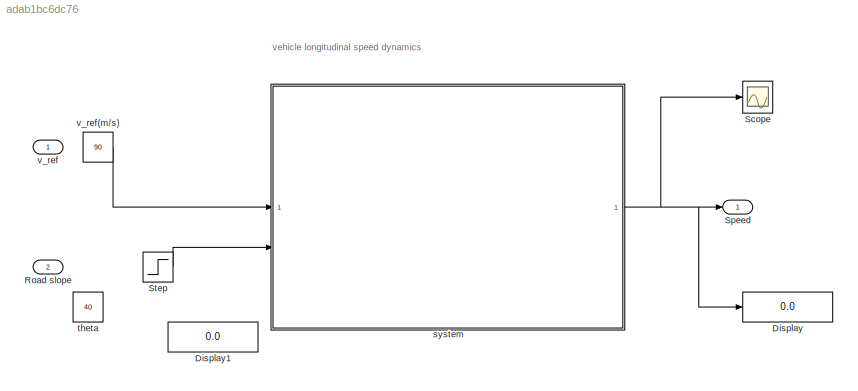
MODEL slx_adab1bc6dc76
KIND model
CONFIG AbsTol = auto
CONFIG EnableMultiTasking = off
CONFIG FixedStep = auto
CONFIG MaxStep = auto
CONFIG MinStep = auto
CONFIG RelTol = 1e-3
CONFIG SampleTimeConstraint = Unconstrained
CONFIG SolverName = ode23
CONFIG StartTime = 0.0
CONFIG StopTime = 10.0
BLOCK [Display] Display
  Decimation = 1
BLOCK [Display] Display1
  Decimation = 1
BLOCK [Inport] Road slope
  Port = 2
BLOCK [Scope] Scope
  Floating = off
  NumInputPorts = 1
  ScopeSpecificationString = Simulink.scopes.TimeScopeBlockCfg('CurrentConfiguration', extmgr.ConfigurationSet(extmgr.Configuration('Core','General UI',true),extmgr.Configuration('Core','Source UI',true),extmgr.Configuration('Sources','WiredSimulink',true),extmgr.Configuration('Visuals','Time Domain',true,'SerializedDisplays',{struct('MinYLimReal','-11.20107','MaxYLimReal','100.80966','YLabelReal','','MinYLimMag','0.00000','M...<+1454ch>
BLOCK [Outport] Speed
BLOCK [Step] Step
  After = 30
  SampleTime = 0
  Time = 20
  ZeroCross = off
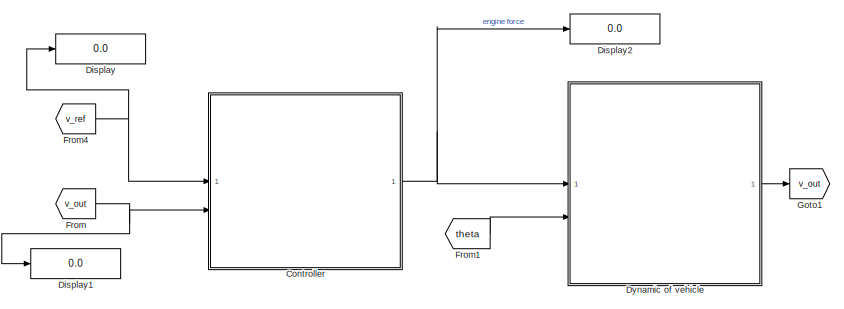
[diagram: system - part 1/2, top right region]
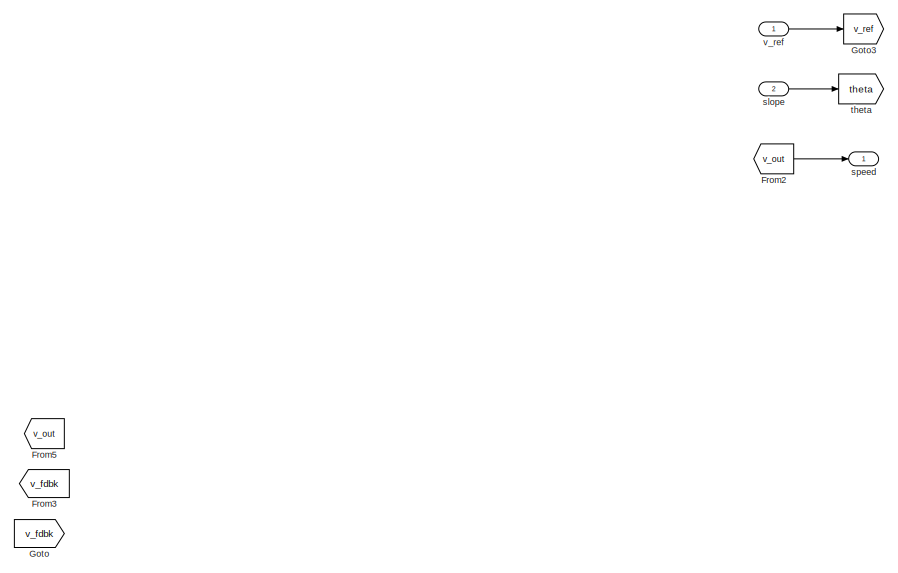
[diagram: system - part 2/2, left side, full height]
BLOCK [SubSystem] system
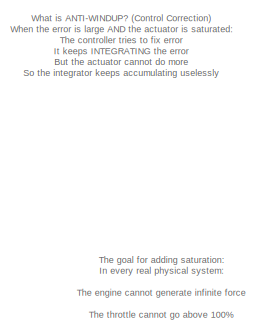
[diagram: system/Controller - part 1/13, top left region]
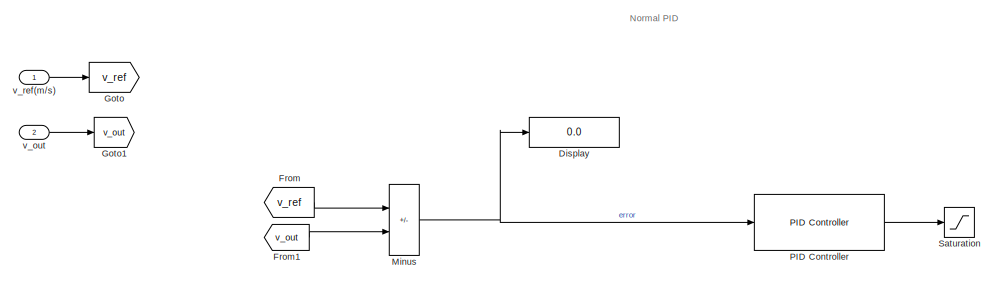
[diagram: system/Controller - part 2/13, top left region]
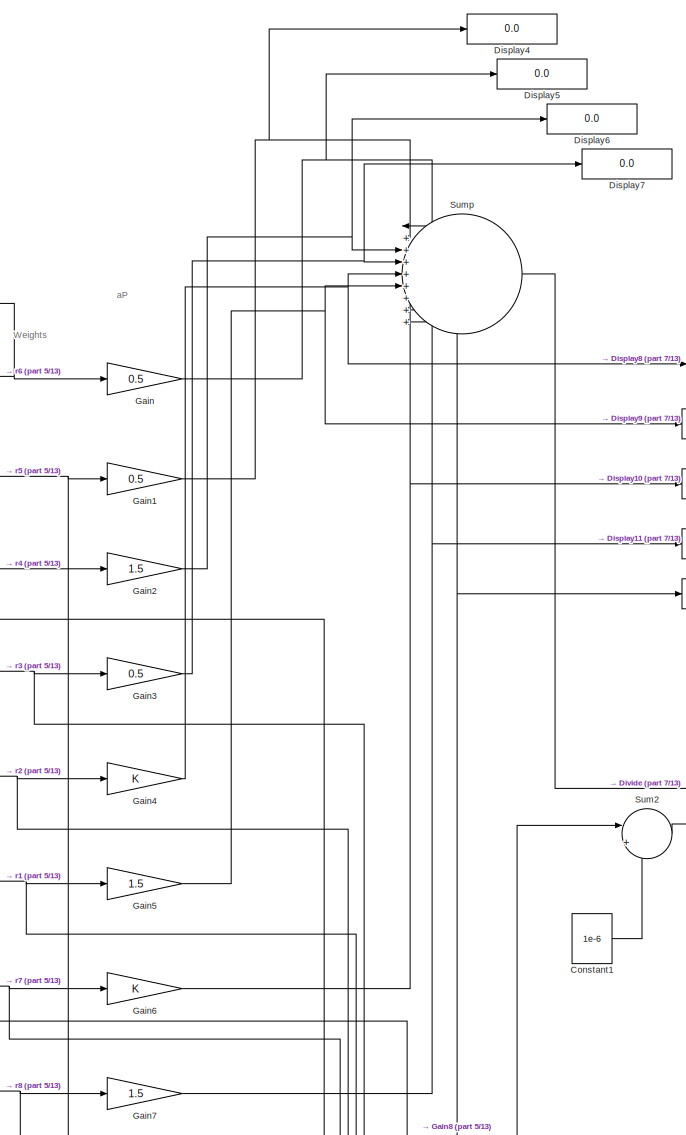
[diagram: system/Controller - part 3/13, central region]
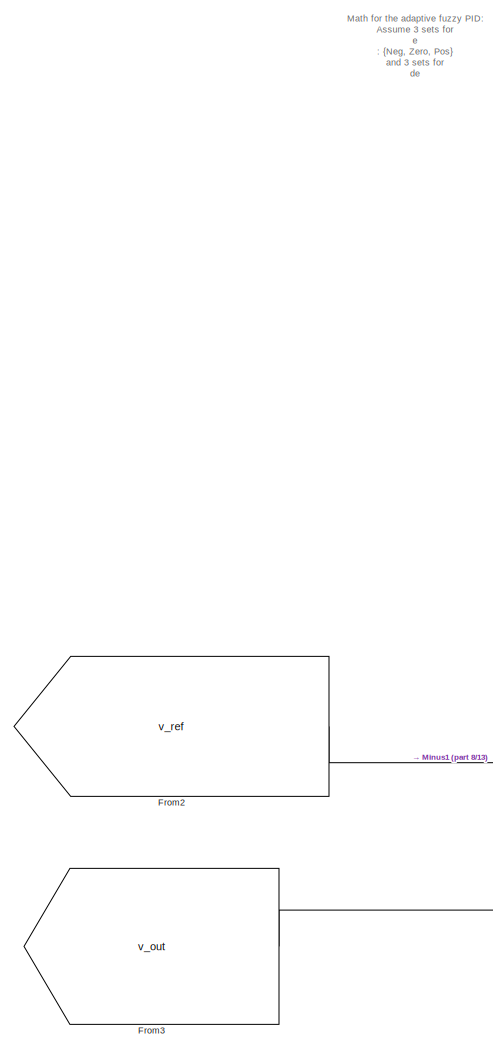
[diagram: system/Controller - part 4/13, middle left region]
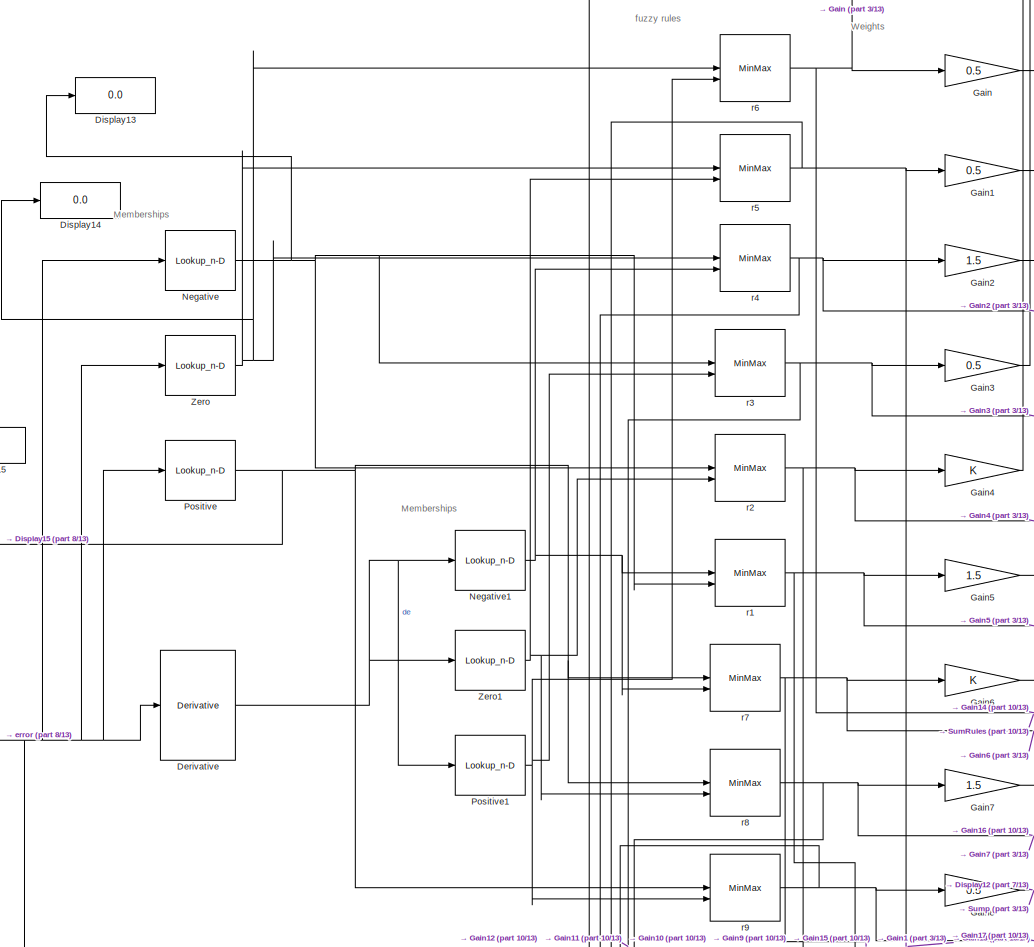
[diagram: system/Controller - part 5/13, central region]
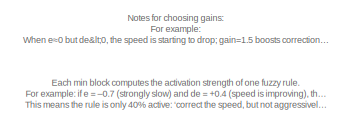
[diagram: system/Controller - part 6/13, middle left region]
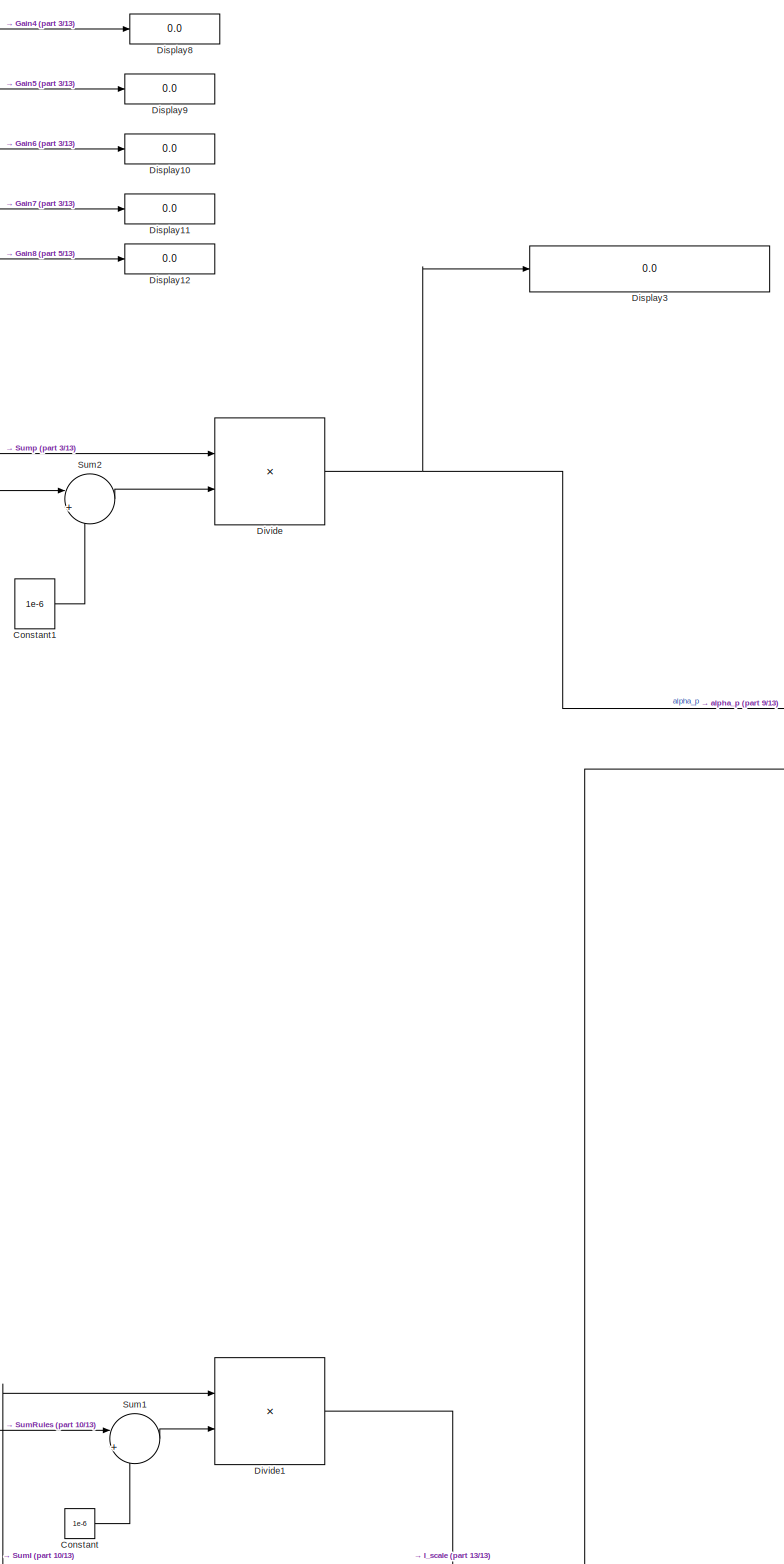
[diagram: system/Controller - part 7/13, central region]
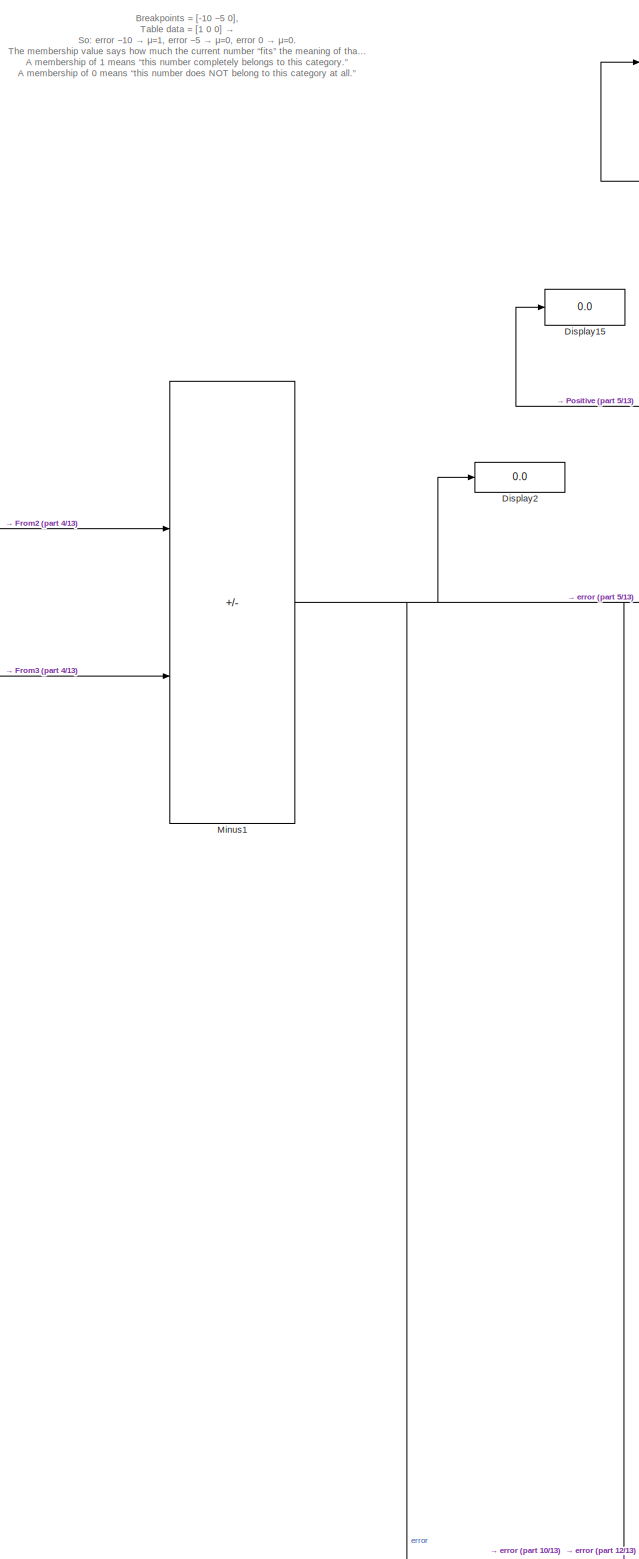
[diagram: system/Controller - part 8/13, middle left region]
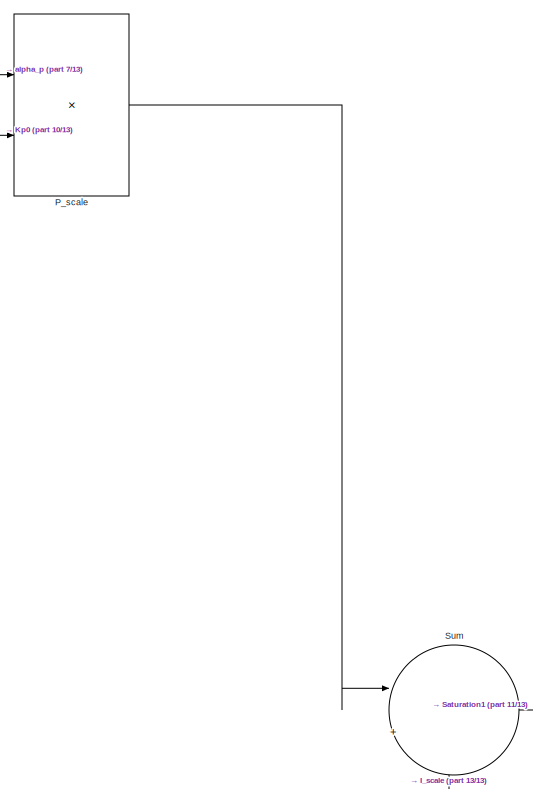
[diagram: system/Controller - part 9/13, middle right region]
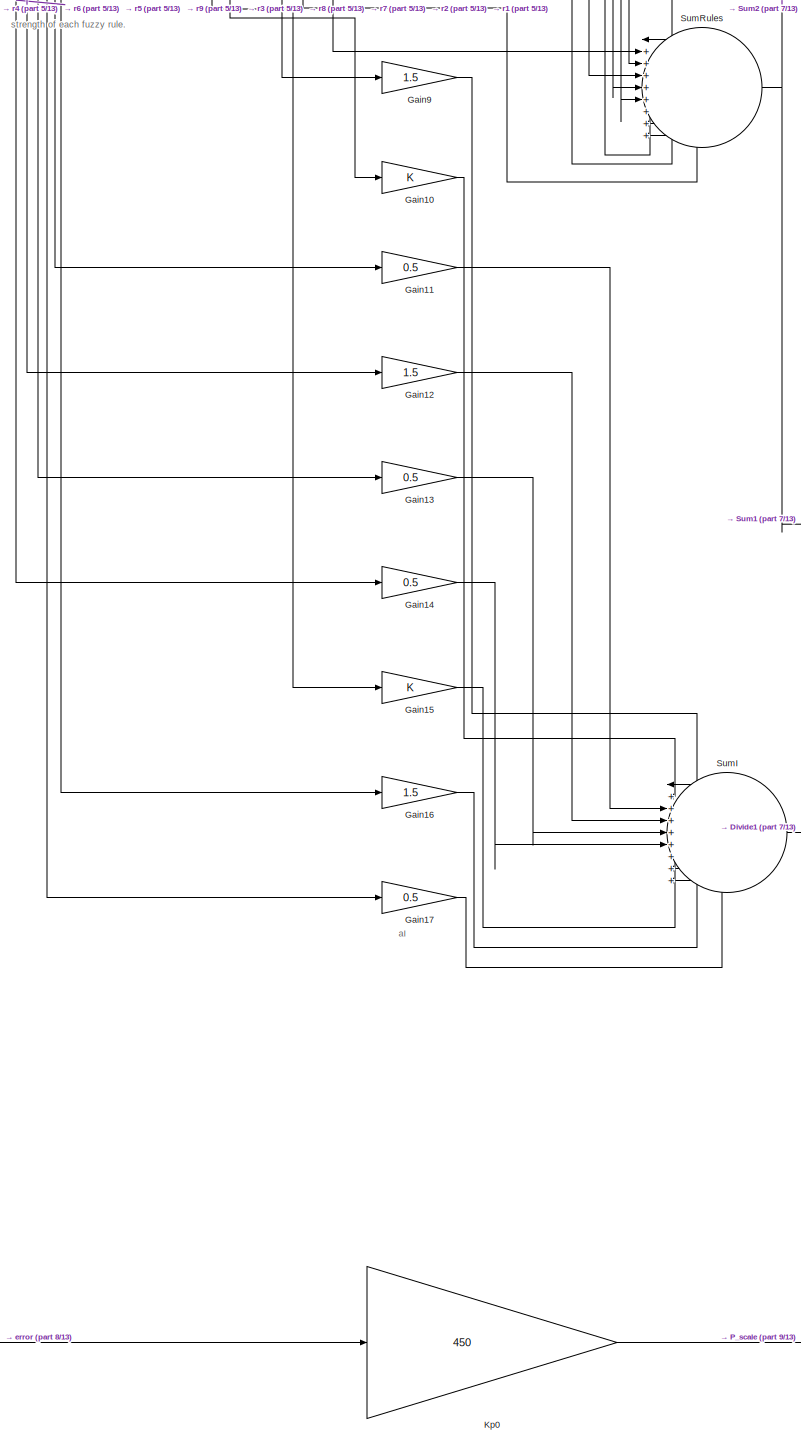
[diagram: system/Controller - part 10/13, bottom center region]
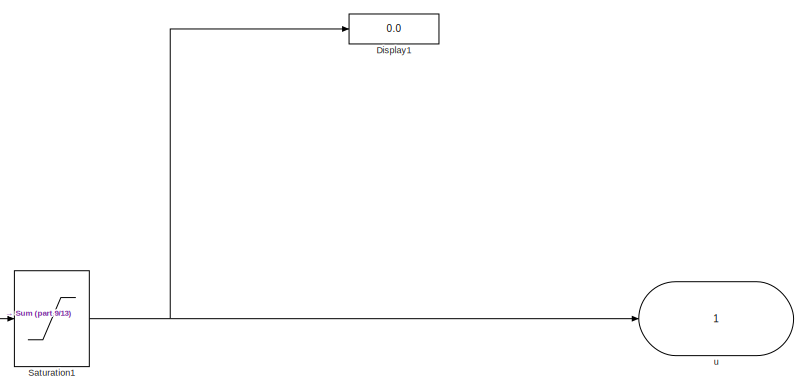
[diagram: system/Controller - part 11/13, bottom right region]
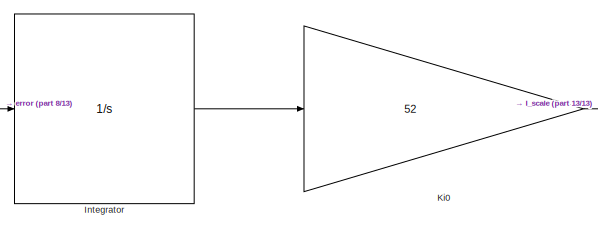
[diagram: system/Controller - part 12/13, bottom center region]
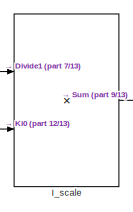
[diagram: system/Controller - part 13/13, bottom right region]
BLOCK [SubSystem] system/Controller
BLOCK [Constant] system/Controller/Constant
  Value = 1e-6
BLOCK [Constant] system/Controller/Constant1
  Value = 1e-6
BLOCK [Derivative] system/Controller/Derivative
BLOCK [Display] system/Controller/Display
  Commented = on
  Decimation = 1
BLOCK [Display] system/Controller/Display1
  Decimation = 1
BLOCK [Display] system/Controller/Display10
  Decimation = 1
BLOCK [Display] system/Controller/Display11
  Decimation = 1
BLOCK [Display] system/Controller/Display12
  Decimation = 1
BLOCK [Display] system/Controller/Display13
  Decimation = 1
BLOCK [Display] system/Controller/Display14
  Decimation = 1
BLOCK [Display] system/Controller/Display15
  Decimation = 1
BLOCK [Display] system/Controller/Display2
  Decimation = 1
BLOCK [Display] system/Controller/Display3
  Decimation = 1
BLOCK [Display] system/Controller/Display4
  Decimation = 1
BLOCK [Display] system/Controller/Display5
  Decimation = 1
BLOCK [Display] system/Controller/Display6
  Decimation = 1
BLOCK [Display] system/Controller/Display7
  Decimation = 1
BLOCK [Display] system/Controller/Display8
  Decimation = 1
BLOCK [Display] system/Controller/Display9
  Decimation = 1
BLOCK [Product] system/Controller/Divide
  Inputs = */
BLOCK [Product] system/Controller/Divide1
  Inputs = */
BLOCK [From] system/Controller/From
  Commented = on
  GotoTag = v_ref
BLOCK [From] system/Controller/From1
  Commented = on
  GotoTag = v_out
BLOCK [From] system/Controller/From2
  GotoTag = v_ref
BLOCK [From] system/Controller/From3
  GotoTag = v_out
BLOCK [Gain] system/Controller/Gain
  Gain = 0.5
BLOCK [Gain] system/Controller/Gain1
  Gain = 0.5
BLOCK [Gain] system/Controller/Gain10
BLOCK [Gain] system/Controller/Gain11
  Gain = 0.5
BLOCK [Gain] system/Controller/Gain12
  Gain = 1.5
BLOCK [Gain] system/Controller/Gain13
  Gain = 0.5
BLOCK [Gain] system/Controller/Gain14
  Gain = 0.5
BLOCK [Gain] system/Controller/Gain15
BLOCK [Gain] system/Controller/Gain16
  Gain = 1.5
BLOCK [Gain] system/Controller/Gain17
  Gain = 0.5
BLOCK [Gain] system/Controller/Gain2
  Gain = 1.5
BLOCK [Gain] system/Controller/Gain3
  Gain = 0.5
BLOCK [Gain] system/Controller/Gain4
BLOCK [Gain] system/Controller/Gain5
  Gain = 1.5
BLOCK [Gain] system/Controller/Gain6
BLOCK [Gain] system/Controller/Gain7
  Gain = 1.5
BLOCK [Gain] system/Controller/Gain8
  Gain = 0.5
BLOCK [Gain] system/Controller/Gain9
  Gain = 1.5
BLOCK [Goto] system/Controller/Goto
  GotoTag = v_ref
BLOCK [Goto] system/Controller/Goto1
  GotoTag = v_out
BLOCK [Product] system/Controller/I_scale
BLOCK [Integrator] system/Controller/Integrator
BLOCK [Gain] system/Controller/Ki0
  Gain = 52
BLOCK [Gain] system/Controller/Kp0
  Gain = 450
BLOCK [Sum] system/Controller/Minus
  Commented = on
  IconShape = rectangular
  Inputs = +-
BLOCK [Sum] system/Controller/Minus1
  IconShape = rectangular
  Inputs = +-
BLOCK [Lookup_n-D] system/Controller/Negative
  BreakpointsForDimension1 = [-10 -5 0]
  InputPortMap = u0
  InternalRulePriority = Speed
  NumberOfTableDimensions = 1
  RndMeth = Simplest
  Table = [1    0  0]
BLOCK [Lookup_n-D] system/Controller/Negative1
  BreakpointsForDimension1 = [-10 -5 0]
  InputPortMap = u0
  InternalRulePriority = Speed
  NumberOfTableDimensions = 1
  RndMeth = Simplest
  Table = [1    0  0]
BLOCK [Reference] system/Controller/PID Controller  REF=slpidlib/PID Controller
  Commented = on
  LibrarySourceBlock = simulink/Continuous/PID Controller
  SourceBlock = slpidlib/PID Controller
  SourceType = PID 1dof
BLOCK [Product] system/Controller/P_scale
BLOCK [Lookup_n-D] system/Controller/Positive
  BreakpointsForDimension1 = [0  5  10]
  InputPortMap = u0
  InternalRulePriority = Speed
  NumberOfTableDimensions = 1
  RndMeth = Simplest
  Table = [0   0  1]
BLOCK [Lookup_n-D] system/Controller/Positive1
  BreakpointsForDimension1 = [0  5  10]
  InputPortMap = u0
  InternalRulePriority = Speed
  NumberOfTableDimensions = 1
  RndMeth = Simplest
  Table = [0   0  1]
BLOCK [Saturate] system/Controller/Saturation
  Commented = on
  LowerLimit = 0
  UpperLimit = 5000
BLOCK [Saturate] system/Controller/Saturation1
  LowerLimit = 0
  UpperLimit = 50000
  ZeroCross = off
BLOCK [Sum] system/Controller/Sum
  Inputs = |++
BLOCK [Sum] system/Controller/Sum1
  Inputs = |++
BLOCK [Sum] system/Controller/Sum2
  Inputs = |++
BLOCK [Sum] system/Controller/SumI
  Inputs = |+++++++++
BLOCK [Sum] system/Controller/SumRules
  Inputs = |+++++++++
BLOCK [Sum] system/Controller/Sump
  Inputs = |+++++++++
BLOCK [Lookup_n-D] system/Controller/Zero
  BreakpointsForDimension1 = [-5 0 5]
  InputPortMap = u0
  InternalRulePriority = Speed
  NumberOfTableDimensions = 1
  RndMeth = Simplest
  Table = [0    1  0]
BLOCK [Lookup_n-D] system/Controller/Zero1
  BreakpointsForDimension1 = [-5 0 5]
  InputPortMap = u0
  InternalRulePriority = Speed
  NumberOfTableDimensions = 1
  RndMeth = Simplest
  Table = [0    1  0]
BLOCK [MinMax] system/Controller/r1
  Inputs = 2
BLOCK [MinMax] system/Controller/r2
  Inputs = 2
BLOCK [MinMax] system/Controller/r3
  Inputs = 2
BLOCK [MinMax] system/Controller/r4
  Inputs = 2
BLOCK [MinMax] system/Controller/r5
  Inputs = 2
BLOCK [MinMax] system/Controller/r6
  Inputs = 2
BLOCK [MinMax] system/Controller/r7
  Inputs = 2
BLOCK [MinMax] system/Controller/r8
  Inputs = 2
BLOCK [MinMax] system/Controller/r9
  Inputs = 2
BLOCK [Outport] system/Controller/u
BLOCK [Inport] system/Controller/v_out
  Port = 2
BLOCK [Inport] system/Controller/v_ref(m//s)
BLOCK [Display] system/Display
  Decimation = 1
BLOCK [Display] system/Display1
  Decimation = 1
BLOCK [Display] system/Display2
  Decimation = 1
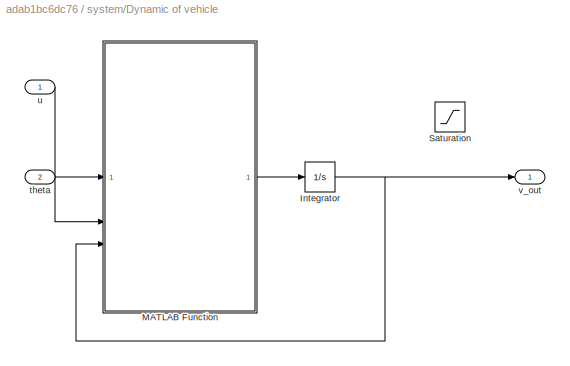
BLOCK [SubSystem] system/Dynamic of vehicle
BLOCK [Integrator] system/Dynamic of vehicle/Integrator
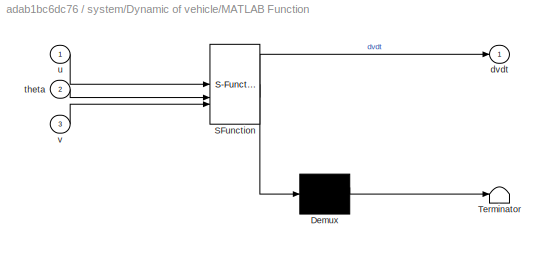
BLOCK [SubSystem] system/Dynamic of vehicle/MATLAB Function
  ErrorFcn = Stateflow.Translate.translate
  PermitHierarchicalResolution = ExplicitOnly
  SFBlockType = MATLAB Function
  TreatAsAtomicUnit = on
BLOCK [Demux] system/Dynamic of vehicle/MATLAB Function/ Demux 
  Outputs = 1
BLOCK [S-Function] system/Dynamic of vehicle/MATLAB Function/ SFunction 
  EnableBusSupport = on
  FunctionName = sf_sfun
  PortCounts = [3 2]
  SFcnIsStateOwnerBlock = off
  SFunctionDeploymentMode = off
  Tag = Stateflow S-Function 2
BLOCK [Terminator] system/Dynamic of vehicle/MATLAB Function/ Terminator 
BLOCK [Outport] system/Dynamic of vehicle/MATLAB Function/dvdt
BLOCK [Inport] system/Dynamic of vehicle/MATLAB Function/theta
  Port = 2
BLOCK [Inport] system/Dynamic of vehicle/MATLAB Function/u
BLOCK [Inport] system/Dynamic of vehicle/MATLAB Function/v
  Port = 3
BLOCK [Saturate] system/Dynamic of vehicle/Saturation
  UpperLimit = 120
  ZeroCross = off
BLOCK [Inport] system/Dynamic of vehicle/theta
  Port = 2
BLOCK [Inport] system/Dynamic of vehicle/u
BLOCK [Outport] system/Dynamic of vehicle/v_out
BLOCK [From] system/From
  GotoTag = v_out
BLOCK [From] system/From1
  GotoTag = theta
BLOCK [From] system/From2
  GotoTag = v_out
BLOCK [From] system/From3
  Commented = on
  GotoTag = v_fdbk
BLOCK [From] system/From4
  GotoTag = v_ref
BLOCK [From] system/From5
  Commented = on
  GotoTag = v_out
BLOCK [Goto] system/Goto
  Commented = on
  GotoTag = v_fdbk
BLOCK [Goto] system/Goto1
  GotoTag = v_out
BLOCK [Goto] system/Goto3
  GotoTag = v_ref
BLOCK [Inport] system/slope
  Port = 2
BLOCK [Outport] system/speed
BLOCK [Goto] system/theta
  GotoTag = theta
BLOCK [Inport] system/v_ref
BLOCK [Constant] theta
  Value = 40
BLOCK [Inport] v_ref
BLOCK [Constant] v_ref(m//s)
  Value = 90
ANNOTATION (root): vehicle longitudinal speed dynamics
ANNOTATION system/Controller: What is ANTI-WINDUP? (Control Correction) When the error is large AND the actuator is saturated: The controller tries to fix error It keeps INTEGRATING the error But the actuator cannot do more So the integrator keeps accumulating uselessly This leads to: HUGE overshoot, VERY slow recovery, Oscillation,Unstable feeling Anti-windup is: A correction mechanism that prevents the integral term from gro...<+36ch>
ANNOTATION system/Controller: Breakpoints = [-10 −5 0] , Table data = [1 0 0] → So: error −10 → μ=1 , error −5 → μ=0 , error 0 → μ=0 . The membership value says how much the current number “fits” the meaning of that fuzzy word. A membership of 1 means “this number completely belongs to this category.” A membership of 0 means “this number does NOT belong to this category at all.” A value between 0 and 1 means “it belongs partly...<+138ch>
ANNOTATION system/Controller: Normal PID
ANNOTATION system/Controller: aI
ANNOTATION system/Controller: aP
ANNOTATION system/Controller: strength of each fuzzy rule .
ANNOTATION system/Controller: Each min block computes the activation strength of one fuzzy rule. For example: if e = –0.7 (strongly slow) and de = +0.4 (speed is improving), the rule is limited by the smaller truth value → min = 0.4. This means the rule is only 40% active: ‘correct the speed, but not aggressively.’
ANNOTATION system/Controller: Notes for choosing gains: For example: When e≈0 but de<0, the speed is starting to drop; gain=1.5 boosts correction to stop drift early.
ANNOTATION system/Controller: Math for the adaptive fuzzy PID: Assume 3 sets for e : {Neg, Zero, Pos} and 3 sets for de : {Neg, Zero, Pos} → total 9 rules . Memberships: $μde,j​(de),j∈{N1,Z1,P1}$ $μe,i​(e),i∈{N,Z,P}$ Rule firing strengths: (min blocks r₁…r₉) $wij​=min(μe,i​(e),μde,j​(de))$ Local contributions of each rule: $Kpij​=aPij​wij​$ $Kiij​=aIij​wij​$ Final adaptive gains: $K_p(e,de) = \frac{\sum_{i,j} aP_{ij}\,w_{ij}}{...<+183ch>
ANNOTATION system/Controller: Memberships
ANNOTATION system/Controller: The goal for adding saturation: In every real physical system: The engine cannot generate infinite force The throttle cannot go above 100% The motor cannot exceed maximum torque Brakes have limits Steering angle has limits
ANNOTATION system/Controller: Weights
ANNOTATION system/Controller: fuzzy rules
LINE Step:1 -> system:2
LINE system/Controller/Constant1:1 -> system/Controller/Sum2:2
LINE system/Controller/Constant:1 -> system/Controller/Sum1:2
NET system/Controller/Derivative:1 -> system/Controller/Negative1:1, system/Controller/Positive1:1, system/Controller/Zero1:1
LINE system/Controller/Divide1:1 -> system/Controller/I_scale:1
NET system/Controller/Divide:1 -> system/Controller/Display3:1, system/Controller/P_scale:1
LINE system/Controller/From1:1 -> system/Controller/Minus:2
LINE system/Controller/From2:1 -> system/Controller/Minus1:1
LINE system/Controller/From3:1 -> system/Controller/Minus1:2
LINE system/Controller/From:1 -> system/Controller/Minus:1
LINE system/Controller/Gain10:1 -> system/Controller/SumI:2
LINE system/Controller/Gain11:1 -> system/Controller/SumI:3
LINE system/Controller/Gain12:1 -> system/Controller/SumI:4
LINE system/Controller/Gain13:1 -> system/Controller/SumI:5
LINE system/Controller/Gain14:1 -> system/Controller/SumI:6
LINE system/Controller/Gain15:1 -> system/Controller/SumI:7
LINE system/Controller/Gain16:1 -> system/Controller/SumI:8
LINE system/Controller/Gain17:1 -> system/Controller/SumI:9
NET system/Controller/Gain1:1 -> system/Controller/Display4:1, system/Controller/Sump:2
NET system/Controller/Gain2:1 -> system/Controller/Display6:1, system/Controller/Sump:3
NET system/Controller/Gain3:1 -> system/Controller/Display7:1, system/Controller/Sump:4
NET system/Controller/Gain4:1 -> system/Controller/Display8:1, system/Controller/Sump:5
NET system/Controller/Gain5:1 -> system/Controller/Display9:1, system/Controller/Sump:6
NET system/Controller/Gain6:1 -> system/Controller/Display10:1, system/Controller/Sump:7
NET system/Controller/Gain7:1 -> system/Controller/Display11:1, system/Controller/Sump:8
NET system/Controller/Gain8:1 -> system/Controller/Display12:1, system/Controller/Sump:9
LINE system/Controller/Gain9:1 -> system/Controller/SumI:1
NET system/Controller/Gain:1 -> system/Controller/Display5:1, system/Controller/Sump:1
LINE system/Controller/I_scale:1 -> system/Controller/Sum:2
LINE system/Controller/Integrator:1 -> system/Controller/Ki0:1
LINE system/Controller/Ki0:1 -> system/Controller/I_scale:2
LINE system/Controller/Kp0:1 -> system/Controller/P_scale:2
NET system/Controller/Minus1:1 -> system/Controller/Derivative:1, system/Controller/Display2:1, system/Controller/Integrator:1, system/Controller/Kp0:1, system/Controller/Negative:1, system/Controller/Positive:1, system/Controller/Zero:1
NET system/Controller/Minus:1 -> system/Controller/Display:1, system/Controller/PID Controller:1
NET system/Controller/Negative1:1 -> system/Controller/r1:1, system/Controller/r4:2, system/Controller/r7:2
NET system/Controller/Negative:1 -> system/Controller/Display13:1, system/Controller/r1:2, system/Controller/r2:1, system/Controller/r3:1
LINE system/Controller/PID Controller:1 -> system/Controller/Saturation:1
LINE system/Controller/P_scale:1 -> system/Controller/Sum:1
NET system/Controller/Positive1:1 -> system/Controller/r3:2, system/Controller/r6:2, system/Controller/r9:2
NET system/Controller/Positive:1 -> system/Controller/Display15:1, system/Controller/r7:1, system/Controller/r8:1, system/Controller/r9:1
NET system/Controller/Saturation1:1 -> system/Controller/Display1:1, system/Controller/u:1
LINE system/Controller/Sum1:1 -> system/Controller/Divide1:2
LINE system/Controller/Sum2:1 -> system/Controller/Divide:2
LINE system/Controller/Sum:1 -> system/Controller/Saturation1:1
LINE system/Controller/SumI:1 -> system/Controller/Divide1:1
NET system/Controller/SumRules:1 -> system/Controller/Sum1:1, system/Controller/Sum2:1
LINE system/Controller/Sump:1 -> system/Controller/Divide:1
NET system/Controller/Zero1:1 -> system/Controller/r2:2, system/Controller/r5:2, system/Controller/r8:2
NET system/Controller/Zero:1 -> system/Controller/Display14:1, system/Controller/r4:1, system/Controller/r5:1, system/Controller/r6:1
NET system/Controller/r1:1 -> system/Controller/Gain5:1, system/Controller/Gain9:1, system/Controller/SumRules:6
NET system/Controller/r2:1 -> system/Controller/Gain10:1, system/Controller/Gain4:1, system/Controller/SumRules:5
NET system/Controller/r3:1 -> system/Controller/Gain11:1, system/Controller/Gain3:1, system/Controller/SumRules:3
NET system/Controller/r4:1 -> system/Controller/Gain12:1, system/Controller/Gain2:1, system/Controller/SumRules:4
NET system/Controller/r5:1 -> system/Controller/Gain13:1, system/Controller/Gain1:1, system/Controller/SumRules:2
NET system/Controller/r6:1 -> system/Controller/Gain14:1, system/Controller/Gain:1, system/Controller/SumRules:1
NET system/Controller/r7:1 -> system/Controller/Gain15:1, system/Controller/Gain6:1, system/Controller/SumRules:7
NET system/Controller/r8:1 -> system/Controller/Gain16:1, system/Controller/Gain7:1, system/Controller/SumRules:8
NET system/Controller/r9:1 -> system/Controller/Gain17:1, system/Controller/Gain8:1, system/Controller/SumRules:9
LINE system/Controller/v_out:1 -> system/Controller/Goto1:1
LINE system/Controller/v_ref(m//s):1 -> system/Controller/Goto:1
NET system/Controller:1 -> system/Display2:1, system/Dynamic of vehicle:1
NET system/Dynamic of vehicle/Integrator:1 -> system/Dynamic of vehicle/MATLAB Function:3, system/Dynamic of vehicle/v_out:1
LINE system/Dynamic of vehicle/MATLAB Function:1 -> system/Dynamic of vehicle/Integrator:1
LINE system/Dynamic of vehicle/theta:1 -> system/Dynamic of vehicle/MATLAB Function:2
LINE system/Dynamic of vehicle/u:1 -> system/Dynamic of vehicle/MATLAB Function:1
LINE system/Dynamic of vehicle:1 -> system/Goto1:1
LINE system/From1:1 -> system/Dynamic of vehicle:2
LINE system/From2:1 -> system/speed:1
NET system/From4:1 -> system/Controller:1, system/Display:1
NET system/From:1 -> system/Controller:2, system/Display1:1
LINE system/slope:1 -> system/theta:1
LINE system/v_ref:1 -> system/Goto3:1
NET system:1 -> Display:1, Scope:1, Speed:1
LINE v_ref(m//s):1 -> system:1
note: NET lines group one-source signal fan-out (src -> all destinations, sorted); 1:1 wires keep LINE
CHART system/Dynamic of vehicle/MATLAB Function states=1 transitions=1
  STATE_LABEL 'eML_blk_kernel()'
  STATE_LABEL 'SCRIPT:\nfunction dvdt = vehicleDynamics(u, theta, v)\n    % Parameters\n    m = 1000;       % mass (kg)\n    b = 50;         % drag coefficient (N*s/m)\n    g = 9.81;       % gravity (m/s^2)\n\n    % Vehicle dynamics\n    dvdt = -(b/m)*v + (1/m)*u - g*sin(theta* pi/180);\nend\n'
CHART  states=0 transitions=0
